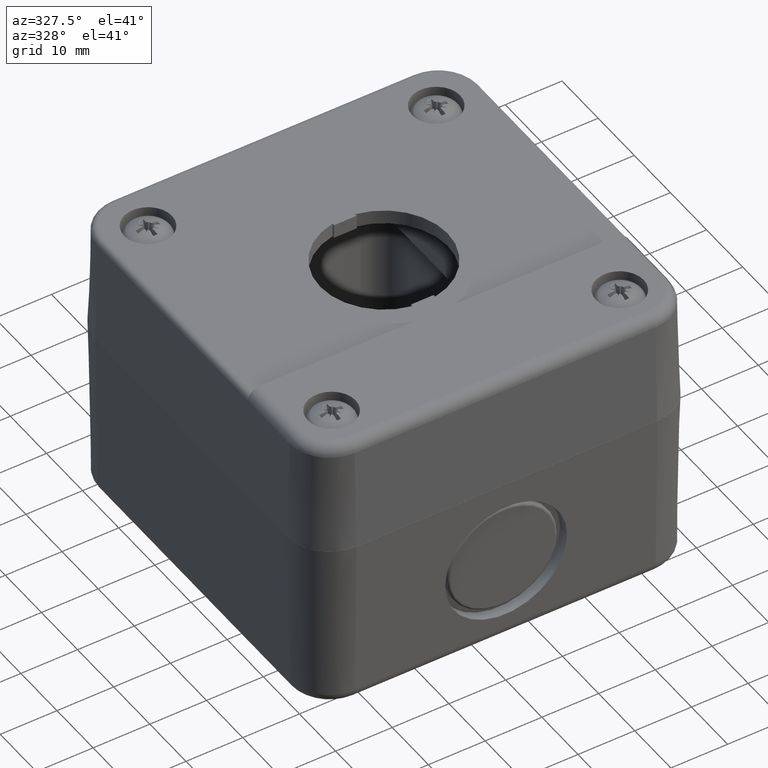
[diagram: clean part render]
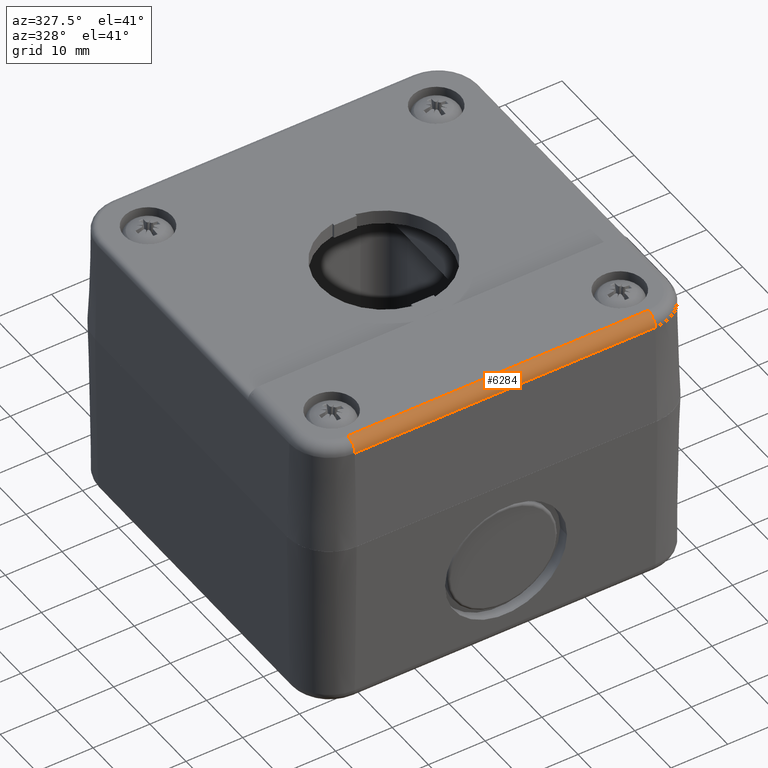
[diagram: same view with one face highlighted and labeled with its STEP entity id]
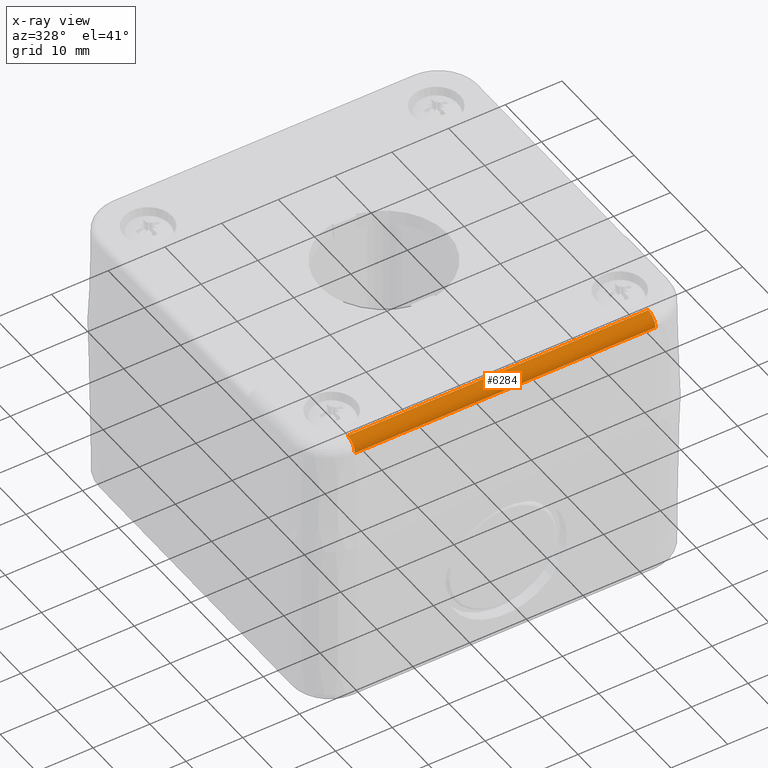
[diagram: x-ray of the same camera — body ghosted, the highlighted face saturated]
A machine part, auxiliary view. The second image highlights one B-rep face of the part: STEP entity #6284.
The next image is the same camera in x-ray: the body ghosted, the highlighted face saturated — about 0% of this face is hidden behind the body in this view.
In plain terms, the highlighted cylindrical surface (edge-blend (fillet) strip) has radius 2 mm, axis along (1, 0, 0).
Its self-contained STEP definition (entity closure, byte-faithful):
#6224=CARTESIAN_POINT('',(25.566394415944860,29.336786567101065,0.0));
#6225=VERTEX_POINT('',#6224);
#6226=CARTESIAN_POINT('',(25.566394415944856,31.336101217052182,1.947646103384255));
#6227=VERTEX_POINT('',#6226);
#6228=CARTESIAN_POINT('',(25.566394415944860,29.336786567101065,2.000000000000002));
#6229=DIRECTION('',(1.0,0.0,0.0));
#6230=DIRECTION('',(0.0,0.0,-1.0));
#6231=AXIS2_PLACEMENT_3D('',#6228,#6229,#6230);
#6232=CIRCLE('',#6231,2.000000000000002);
#6233=EDGE_CURVE('',#6225,#6227,#6232,.T.);
#6253=CARTESIAN_POINT('',(-14.183605584055147,29.336786567101065,2.0));
#6254=DIRECTION('',(1.0,8.379042E-017,0.0));
#6255=DIRECTION('',(0.0,0.697790459841681,-0.716301943424653));
#6256=AXIS2_PLACEMENT_3D('',#6253,#6254,#6255);
#6257=CYLINDRICAL_SURFACE('',#6256,2.000000000000000);
#6258=CARTESIAN_POINT('',(-27.433605584055144,29.336786567101065,0.0));
#6259=VERTEX_POINT('',#6258);
#6260=CARTESIAN_POINT('',(-27.433605584055144,31.336101217052178,1.947646103384254));
#6261=VERTEX_POINT('',#6260);
#6262=CARTESIAN_POINT('',(-27.433605584055144,29.336786567101065,2.0));
#6263=DIRECTION('',(1.0,0.0,0.0));
#6264=DIRECTION('',(0.0,0.0,-1.0));
#6265=AXIS2_PLACEMENT_3D('',#6262,#6263,#6264);
#6266=CIRCLE('',#6265,2.0);
#6267=EDGE_CURVE('',#6259,#6261,#6266,.T.);
#6268=ORIENTED_EDGE('',*,*,#6267,.T.);
#6269=CARTESIAN_POINT('',(-27.433605584055144,31.336101217052178,1.947646103384254));
#6270=DIRECTION('',(1.0,0.0,0.0));
#6271=VECTOR('',#6270,53.0);
#6272=LINE('',#6269,#6271);
#6273=EDGE_CURVE('',#6261,#6227,#6272,.T.);
#6274=ORIENTED_EDGE('',*,*,#6273,.T.);
#6275=ORIENTED_EDGE('',*,*,#6233,.F.);
#6276=CARTESIAN_POINT('',(25.566394415944860,29.336786567101065,0.0));
#6277=DIRECTION('',(-1.0,0.0,0.0));
#6278=VECTOR('',#6277,53.0);
#6279=LINE('',#6276,#6278);
#6280=EDGE_CURVE('',#6225,#6259,#6279,.T.);
#6281=ORIENTED_EDGE('',*,*,#6280,.T.);
#6282=EDGE_LOOP('',(#6268,#6274,#6275,#6281));
#6283=FACE_OUTER_BOUND('',#6282,.T.);
#6284=ADVANCED_FACE('',(#6283),#6257,.T.);